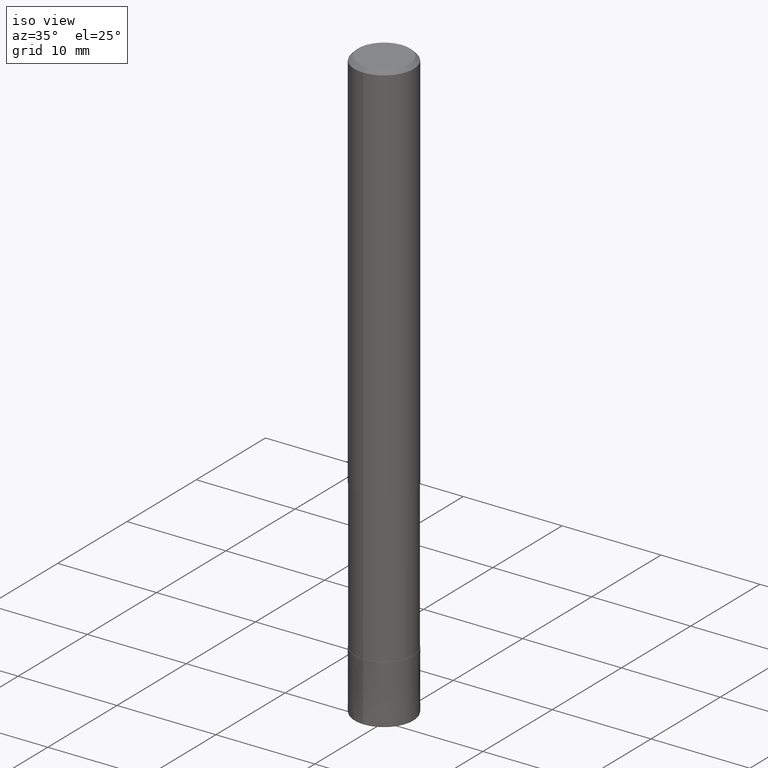
[diagram: clean part render]
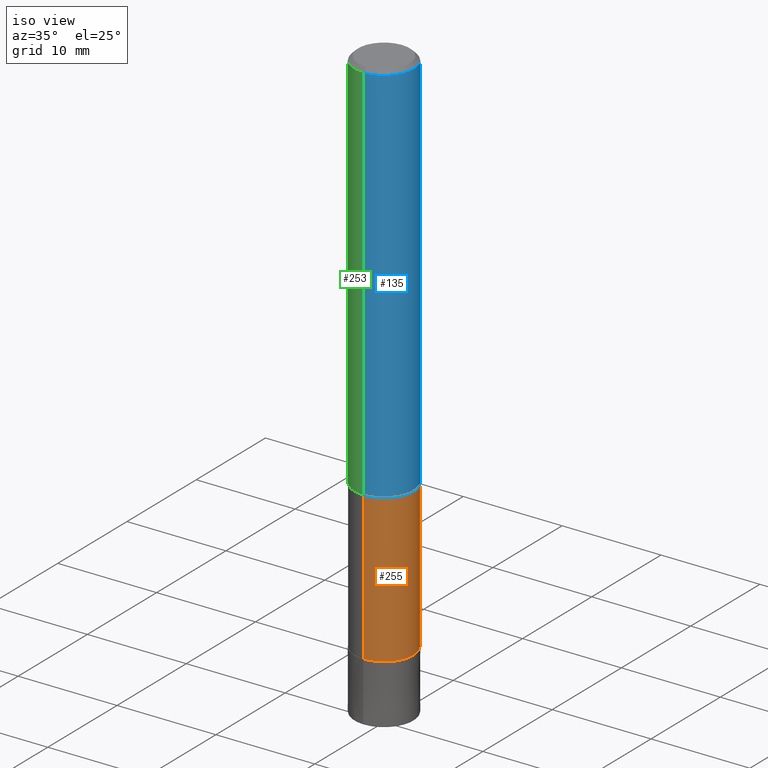
[diagram: same view with three faces highlighted in distinct colors, each labeled with its STEP entity id]
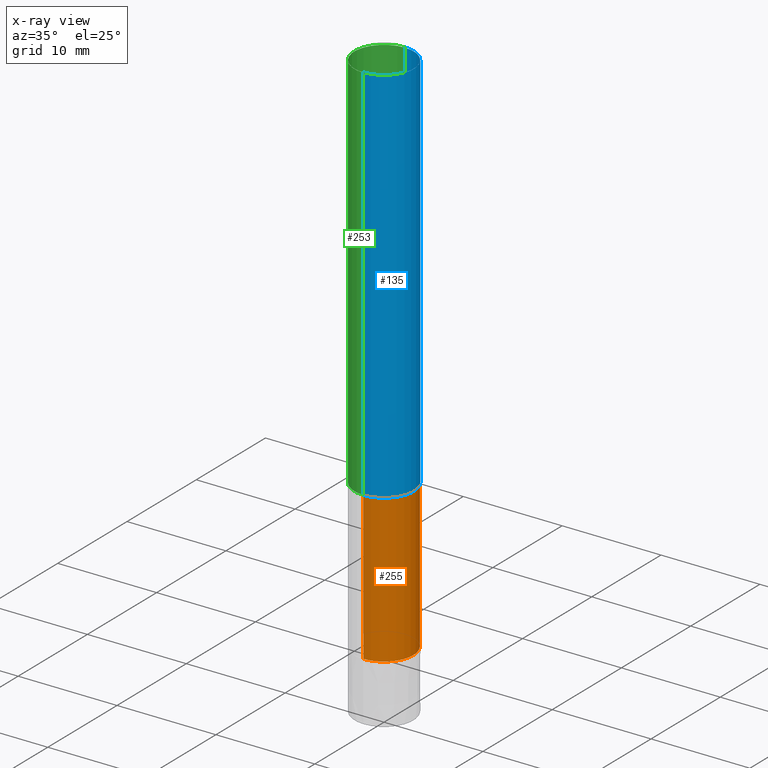
[diagram: x-ray of the same camera — body ghosted, the three highlighted faces saturated]
A machine part, iso view with three faces highlighted in distinct colors.
The next image is the same camera in x-ray (body ghosted, the three faces saturated) — at least one of them is partly hidden behind the body in this view.
Their STEP definitions:

[orange] entity #255 — the highlighted cylindrical surface (edge-blend (fillet) strip) has radius 2.975 mm, axis along (-0, -0, 1).
#149=EDGE_CURVE('',#169,#157,#340,.T.);
#151=EDGE_CURVE('',#217,#157,#342,.T.);
#157=VERTEX_POINT('',#350);
#165=EDGE_CURVE('',#221,#169,#360,.T.);
#169=VERTEX_POINT('',#364);
#199=EDGE_CURVE('',#217,#221,#399,.T.);
#217=VERTEX_POINT('',#417);
#221=VERTEX_POINT('',#422);
#255=ADVANCED_FACE('',(#459),#460,.T.);
#340=LINE('',#552,#553);
#342=CIRCLE('',#556,2.97495);
#350=CARTESIAN_POINT('',(3.64314267230388E-016,-2.97495,-39.0));
#360=CIRCLE('',#576,2.97495);
#364=CARTESIAN_POINT('',(3.64314267230388E-016,-2.97495,-54.0));
#399=LINE('',#623,#624);
#417=CARTESIAN_POINT('',(0.0,2.97495,-39.0));
#422=CARTESIAN_POINT('',(0.0,2.97495,-54.0));
#459=FACE_OUTER_BOUND('',#707,.T.);
#460=CYLINDRICAL_SURFACE('',#708,2.97495);
#552=CARTESIAN_POINT('',(3.64314267230388E-016,-2.97495,-46.5));
#553=VECTOR('',#797,1.0);
#556=AXIS2_PLACEMENT_3D('',#798,#799,#800);
#576=AXIS2_PLACEMENT_3D('',#826,#827,#828);
#623=CARTESIAN_POINT('',(-3.64314267230388E-016,2.97495,-46.5));
#624=VECTOR('',#876,1.0);
#707=EDGE_LOOP('',(#947,#948,#949,#950));
#708=AXIS2_PLACEMENT_3D('',#951,#952,#953);
#797=DIRECTION('',(-0.0,-0.0,1.0));
#798=CARTESIAN_POINT('',(0.0,0.0,-39.0));
#799=DIRECTION('',(0.0,0.0,-1.0));
#800=DIRECTION('',(0.0,1.0,0.0));
#826=CARTESIAN_POINT('',(0.0,0.0,-54.0));
#827=DIRECTION('',(0.0,0.0,-1.0));
#828=DIRECTION('',(0.0,1.0,0.0));
#876=DIRECTION('',(0.0,0.0,-1.0));
#947=ORIENTED_EDGE('',*,*,#199,.F.);
#948=ORIENTED_EDGE('',*,*,#151,.T.);
#949=ORIENTED_EDGE('',*,*,#149,.F.);
#950=ORIENTED_EDGE('',*,*,#165,.F.);
#951=CARTESIAN_POINT('',(0.0,0.0,-46.5));
#952=DIRECTION('',(-0.0,-0.0,1.0));
#953=DIRECTION('',(0.0,1.0,0.0));

[blue] entity #135 — the highlighted cylindrical surface (edge-blend (fillet) strip) has radius 3 mm, axis along (-0, -0, 1).
#119=VERTEX_POINT('',#307);
#123=EDGE_CURVE('',#263,#261,#311,.T.);
#135=ADVANCED_FACE('',(#324),#325,.T.);
#201=VERTEX_POINT('',#401);
#203=EDGE_CURVE('',#119,#261,#403,.T.);
#245=EDGE_CURVE('',#119,#201,#447,.T.);
#261=VERTEX_POINT('',#469);
#263=VERTEX_POINT('',#471);
#279=EDGE_CURVE('',#201,#263,#488,.T.);
#307=CARTESIAN_POINT('',(0.0,3.0,-0.399999999999999));
#311=LINE('',#515,#516);
#324=FACE_OUTER_BOUND('',#533,.T.);
#325=CYLINDRICAL_SURFACE('',#534,3.0);
#401=CARTESIAN_POINT('',(0.0,3.0,-39.0));
#403=CIRCLE('',#629,3.0);
#447=LINE('',#692,#693);
#469=CARTESIAN_POINT('',(3.67381906146713E-016,-3.0,-0.399999999999999));
#471=CARTESIAN_POINT('',(3.67381906146713E-016,-3.0,-39.0));
#488=CIRCLE('',#738,3.0);
#515=CARTESIAN_POINT('',(3.67381906146713E-016,-3.0,-19.7));
#516=VECTOR('',#755,1.0);
#533=EDGE_LOOP('',(#777,#778,#779,#780));
#534=AXIS2_PLACEMENT_3D('',#781,#782,#783);
#629=AXIS2_PLACEMENT_3D('',#877,#878,#879);
#692=CARTESIAN_POINT('',(-3.67381906146713E-016,3.0,-19.7));
#693=VECTOR('',#923,1.0);
#738=AXIS2_PLACEMENT_3D('',#981,#982,#983);
#755=DIRECTION('',(-0.0,-0.0,1.0));
#777=ORIENTED_EDGE('',*,*,#245,.F.);
#778=ORIENTED_EDGE('',*,*,#203,.T.);
#779=ORIENTED_EDGE('',*,*,#123,.F.);
#780=ORIENTED_EDGE('',*,*,#279,.F.);
#781=CARTESIAN_POINT('',(0.0,0.0,-19.7));
#782=DIRECTION('',(-0.0,-0.0,1.0));
#783=DIRECTION('',(0.0,1.0,0.0));
#877=CARTESIAN_POINT('',(0.0,0.0,-0.399999999999999));
#878=DIRECTION('',(0.0,0.0,-1.0));
#879=DIRECTION('',(0.0,1.0,0.0));
#923=DIRECTION('',(0.0,0.0,-1.0));
#981=CARTESIAN_POINT('',(0.0,0.0,-39.0));
#982=DIRECTION('',(0.0,0.0,-1.0));
#983=DIRECTION('',(0.0,1.0,0.0));

[green] entity #253 — the highlighted cylindrical surface (edge-blend (fillet) strip) has radius 3 mm, axis along (-0, -0, 1).
#119=VERTEX_POINT('',#307);
#123=EDGE_CURVE('',#263,#261,#311,.T.);
#147=EDGE_CURVE('',#263,#201,#338,.T.);
#181=EDGE_CURVE('',#261,#119,#377,.T.);
#201=VERTEX_POINT('',#401);
#245=EDGE_CURVE('',#119,#201,#447,.T.);
#253=ADVANCED_FACE('',(#456),#457,.T.);
#261=VERTEX_POINT('',#469);
#263=VERTEX_POINT('',#471);
#307=CARTESIAN_POINT('',(0.0,3.0,-0.399999999999999));
#311=LINE('',#515,#516);
#338=CIRCLE('',#549,3.0);
#377=CIRCLE('',#598,3.0);
#401=CARTESIAN_POINT('',(0.0,3.0,-39.0));
#447=LINE('',#692,#693);
#456=FACE_OUTER_BOUND('',#704,.T.);
#457=CYLINDRICAL_SURFACE('',#705,3.0);
#469=CARTESIAN_POINT('',(3.67381906146713E-016,-3.0,-0.399999999999999));
#471=CARTESIAN_POINT('',(3.67381906146713E-016,-3.0,-39.0));
#515=CARTESIAN_POINT('',(3.67381906146713E-016,-3.0,-19.7));
#516=VECTOR('',#755,1.0);
#549=AXIS2_PLACEMENT_3D('',#794,#795,#796);
#598=AXIS2_PLACEMENT_3D('',#844,#845,#846);
#692=CARTESIAN_POINT('',(-3.67381906146713E-016,3.0,-19.7));
#693=VECTOR('',#923,1.0);
#704=EDGE_LOOP('',(#939,#940,#941,#942));
#705=AXIS2_PLACEMENT_3D('',#943,#944,#945);
#755=DIRECTION('',(-0.0,-0.0,1.0));
#794=CARTESIAN_POINT('',(0.0,0.0,-39.0));
#795=DIRECTION('',(0.0,0.0,-1.0));
#796=DIRECTION('',(0.0,1.0,0.0));
#844=CARTESIAN_POINT('',(0.0,0.0,-0.399999999999999));
#845=DIRECTION('',(0.0,0.0,-1.0));
#846=DIRECTION('',(0.0,1.0,0.0));
#923=DIRECTION('',(0.0,0.0,-1.0));
#939=ORIENTED_EDGE('',*,*,#245,.T.);
#940=ORIENTED_EDGE('',*,*,#147,.F.);
#941=ORIENTED_EDGE('',*,*,#123,.T.);
#942=ORIENTED_EDGE('',*,*,#181,.T.);
#943=CARTESIAN_POINT('',(0.0,0.0,-19.7));
#944=DIRECTION('',(-0.0,-0.0,1.0));
#945=DIRECTION('',(0.0,1.0,0.0));